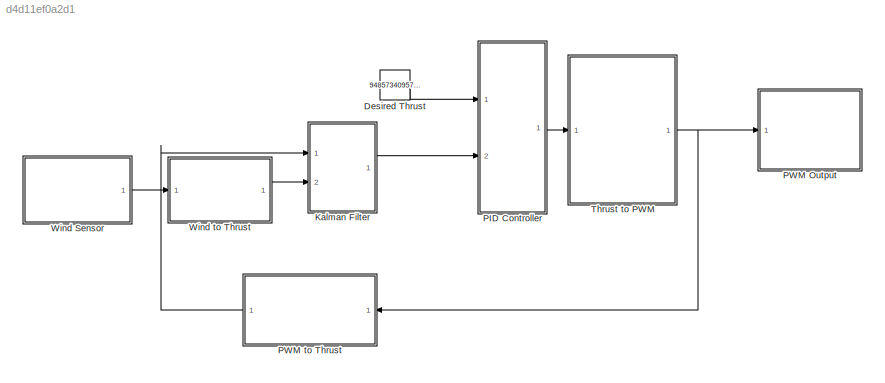
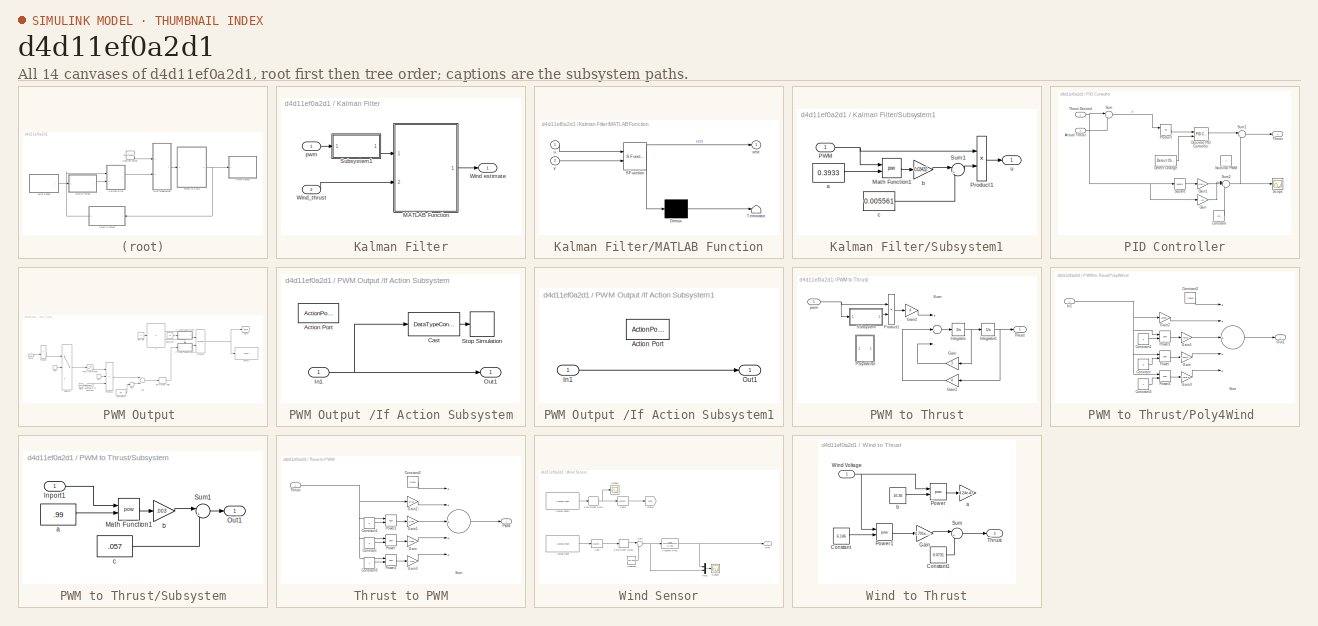
[diagram: thumbnail index - all 14 canvases of the model, root first then tree order]
MODEL slx_d4d11ef0a2d1
KIND model
CONFIG AbsTol = auto
CONFIG EnableMultiTasking = off
CONFIG FixedStep = auto
CONFIG MaxStep = auto
CONFIG MinStep = auto
CONFIG RelTol = 1e-3
CONFIG SampleTimeConstraint = Unconstrained
CONFIG Solver = VariableStepAuto
CONFIG SolverName = VariableStepAuto
CONFIG StartTime = 0.0
CONFIG StopTime = 10.0
BLOCK [Constant] Desired Thrust 
  Value = 9485734095704
BLOCK [SubSystem] Kalman Filter
  Ports = [2, 1]
  RequestExecContextInheritance = off
BLOCK [SubSystem] Kalman Filter/MATLAB Function
  ErrorFcn = Stateflow.Translate.translate
  PermitHierarchicalResolution = ExplicitOnly
  Ports = [2, 1]
  RequestExecContextInheritance = off
  SFBlockType = MATLAB Function
  TreatAsAtomicUnit = on
BLOCK [Demux] Kalman Filter/MATLAB Function/ Demux 
  Outputs = 1
  Ports = [1, 1]
BLOCK [S-Function] Kalman Filter/MATLAB Function/ SFunction 
  EnableBusSupport = on
  FunctionName = sf_sfun
  PortCounts = [2 2]
  Ports = [2, 2]
  SFcnIsStateOwnerBlock = off
  SFunctionDeploymentMode = off
  Tag = Stateflow S-Function Block_diagram 2
BLOCK [Terminator] Kalman Filter/MATLAB Function/ Terminator 
BLOCK [Inport] Kalman Filter/MATLAB Function/u
  IconDisplay = Port number
BLOCK [Outport] Kalman Filter/MATLAB Function/xest
  IconDisplay = Port number
BLOCK [Inport] Kalman Filter/MATLAB Function/y
  IconDisplay = Port number
  Port = 2
BLOCK [SubSystem] Kalman Filter/Subsystem1
  Ports = [1, 1]
  RequestExecContextInheritance = off
BLOCK [Math] Kalman Filter/Subsystem1/Math Function1
  Operator = pow
  Ports = [2, 1]
BLOCK [Inport] Kalman Filter/Subsystem1/PWM
  IconDisplay = Port number
BLOCK [Product] Kalman Filter/Subsystem1/Product1
  InputSameDT = off
  OutDataTypeStr = Inherit: Inherit via internal rule
  Ports = [2, 1]
  RndMeth = Floor
  SaturateOnIntegerOverflow = off
BLOCK [Sum] Kalman Filter/Subsystem1/Sum1
  IconShape = round
  InputSameDT = off
  Inputs = |++
  OutDataTypeStr = Inherit: Inherit via internal rule
  Ports = [2, 1]
  SaturateOnIntegerOverflow = off
BLOCK [Constant] Kalman Filter/Subsystem1/a
  Value = 0.3933
BLOCK [Gain] Kalman Filter/Subsystem1/b
  Gain = 0.03432
  OutDataTypeStr = Inherit: Inherit via internal rule
  ParamDataTypeStr = Inherit: Inherit via internal rule
  SaturateOnIntegerOverflow = off
BLOCK [Constant] Kalman Filter/Subsystem1/c
  Value = 0.005561
BLOCK [Outport] Kalman Filter/Subsystem1/u
  IconDisplay = Port number
BLOCK [Outport] Kalman Filter/Wind estimate
  IconDisplay = Port number
BLOCK [Inport] Kalman Filter/Wind_thrust
  IconDisplay = Port number
  Port = 2
BLOCK [Inport] Kalman Filter/pwm
  IconDisplay = Port number
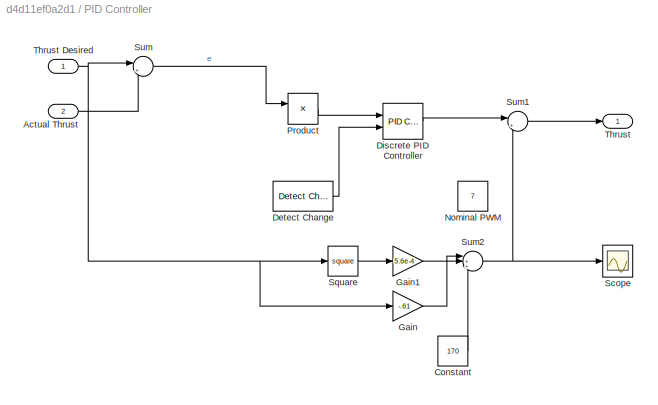
BLOCK [SubSystem] PID Controller
  Ports = [2, 1]
  RequestExecContextInheritance = off
BLOCK [Inport] PID Controller/Actual Thrust
  IconDisplay = Port number
  Port = 2
BLOCK [Constant] PID Controller/Constant
  Value = 170
BLOCK [Reference] PID Controller/Detect Change  REF=simulink/Logic and Bit
Operations/Detect
Change
  Ports = [1, 1]
  SourceBlock = simulink/Logic and Bit\nOperations/Detect\nChange
  SourceProductBaseCode = SL
  SourceProductName = Simulink
  SourceType = Detect Change
BLOCK [Reference] PID Controller/Discrete PID Controller  REF=simulink/Continuous/PID Controller
  Ports = [2, 1]
  SourceBlock = simulink/Continuous/PID Controller
  SourceProductBaseCode = SL
  SourceProductName = Simulink
  SourceType = PID 1dof
BLOCK [Gain] PID Controller/Gain
  Gain = -.61
  OutDataTypeStr = Inherit: Inherit via internal rule
  ParamDataTypeStr = Inherit: Inherit via internal rule
  SaturateOnIntegerOverflow = off
BLOCK [Gain] PID Controller/Gain1
  Gain = 5.6e-4
  OutDataTypeStr = Inherit: Inherit via internal rule
  ParamDataTypeStr = Inherit: Inherit via internal rule
  SaturateOnIntegerOverflow = off
BLOCK [Constant] PID Controller/Nominal PWM
  Commented = on
  SampleTime = 0.01
  Value = 7
BLOCK [Product] PID Controller/Product
  InputSameDT = off
  OutDataTypeStr = Inherit: Inherit via internal rule
  Ports = [2, 1]
  RndMeth = Floor
  SaturateOnIntegerOverflow = off
BLOCK [Scope] PID Controller/Scope
  Floating = off
  NumInputPorts = 1
  Ports = [1]
  ScopeSpecificationString = Simulink.scopes.TimeScopeBlockCfg('CurrentConfiguration', extmgr.ConfigurationSet(extmgr.Configuration('Core','General UI',true),extmgr.Configuration('Core','Source UI',true),extmgr.Configuration('Sources','WiredSimulink',true,'DataLoggingVariableName','ScopeData1'),extmgr.Configuration('Visuals','Time Domain',true,'SerializedDisplays',{struct('MinYLimReal','10.06778','MaxYLimReal','10.39002','YLa...<+1398ch>
BLOCK [Math] PID Controller/Square
  Operator = square
  Ports = [1, 1]
BLOCK [Sum] PID Controller/Sum
  IconShape = round
  InputSameDT = off
  Inputs = |+-
  OutDataTypeStr = Inherit: Inherit via internal rule
  Ports = [2, 1]
  SaturateOnIntegerOverflow = off
BLOCK [Sum] PID Controller/Sum1
  IconShape = round
  InputSameDT = off
  Inputs = |++
  OutDataTypeStr = Inherit: Inherit via internal rule
  Ports = [2, 1]
  SaturateOnIntegerOverflow = off
BLOCK [Sum] PID Controller/Sum2
  IconShape = round
  InputSameDT = off
  Inputs = |+++
  OutDataTypeStr = Inherit: Inherit via internal rule
  Ports = [3, 1]
  SaturateOnIntegerOverflow = off
BLOCK [Outport] PID Controller/Thrust 
  IconDisplay = Port number
BLOCK [Inport] PID Controller/Thrust Desired
  IconDisplay = Port number
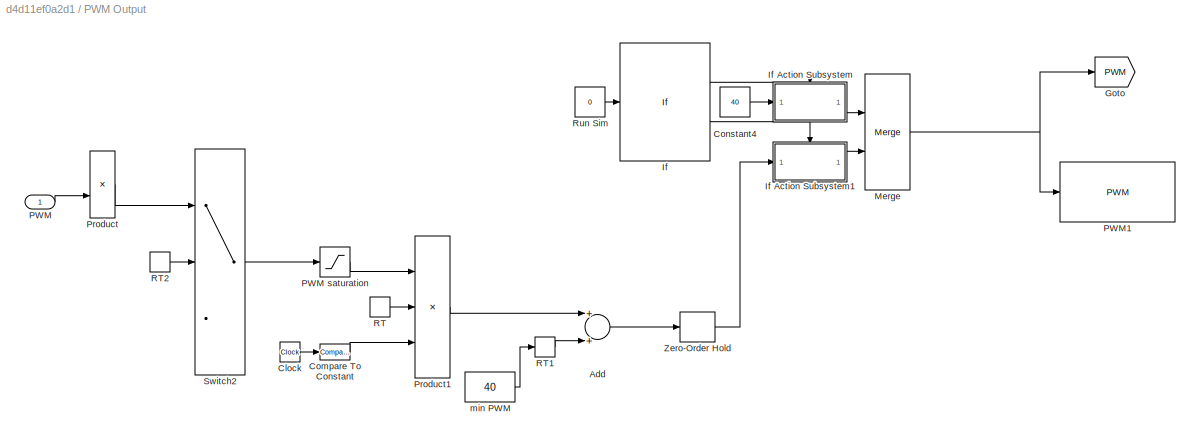
BLOCK [SubSystem] PWM Output 
  Ports = [1]
  RequestExecContextInheritance = off
BLOCK [Sum] PWM Output /Add
  InputSameDT = off
  OutDataTypeStr = Inherit: Inherit via internal rule
  Ports = [2, 1]
  SaturateOnIntegerOverflow = off
BLOCK [Clock] PWM Output /Clock
  Decimation = 2
BLOCK [Reference] PWM Output /Compare To Constant  REF=simulink/Logic and Bit
Operations/Compare
To Constant
  Ports = [1, 1]
  SourceBlock = simulink/Logic and Bit\nOperations/Compare\nTo Constant
  SourceProductBaseCode = SL
  SourceProductName = Simulink
  SourceType = Compare To Constant
BLOCK [Constant] PWM Output /Constant4
  SampleTime = 0.01
  Value = 40
BLOCK [Goto] PWM Output /Goto
  GotoTag = PWM
  TagVisibility = global
BLOCK [If] PWM Output /If
  IfExpression = u1 ~= 1
  Ports = [1, 2]
BLOCK [SubSystem] PWM Output /If Action Subsystem
  Ports = [1, 1, 0, 0, 0, 0, 0, 1]
  RequestExecContextInheritance = off
  TreatAsAtomicUnit = on
BLOCK [ActionPort] PWM Output /If Action Subsystem/Action Port
BLOCK [DataTypeConversion] PWM Output /If Action Subsystem/Cast
  OutDataTypeStr = boolean
  RndMeth = Floor
  SaturateOnIntegerOverflow = off
BLOCK [Inport] PWM Output /If Action Subsystem/In1
  IconDisplay = Port number
BLOCK [Outport] PWM Output /If Action Subsystem/Out1
  IconDisplay = Port number
BLOCK [Stop] PWM Output /If Action Subsystem/Stop Simulation
BLOCK [SubSystem] PWM Output /If Action Subsystem1
  Ports = [1, 1, 0, 0, 0, 0, 0, 1]
  RequestExecContextInheritance = off
  TreatAsAtomicUnit = on
BLOCK [ActionPort] PWM Output /If Action Subsystem1/Action Port
BLOCK [Inport] PWM Output /If Action Subsystem1/In1
  IconDisplay = Port number
BLOCK [Outport] PWM Output /If Action Subsystem1/Out1
  IconDisplay = Port number
BLOCK [Merge] PWM Output /Merge
  Ports = [2, 1]
BLOCK [Inport] PWM Output /PWM
  IconDisplay = Port number
BLOCK [Saturate] PWM Output /PWM saturation
  InputPortMap = u0
  LowerLimit = 0
  Ports = [1, 1]
  UpperLimit = 40
BLOCK [Reference] PWM Output /PWM1  REF=arduinolib/PWM
  Ports = [1]
  SourceBlock = arduinolib/PWM
  SourceProductBaseCode = ARDUINO
  SourceProductName = Simulink Support Package for Arduino Hardware
  SourceType = Arduino PWM
BLOCK [Product] PWM Output /Product
  InputSameDT = off
  OutDataTypeStr = Inherit: Inherit via internal rule
  Ports = [2, 1]
  RndMeth = Floor
  SaturateOnIntegerOverflow = off
BLOCK [Product] PWM Output /Product1
  InputSameDT = off
  Inputs = 3
  OutDataTypeStr = Inherit: Inherit via internal rule
  Ports = [3, 1]
  RndMeth = Floor
  SaturateOnIntegerOverflow = off
BLOCK [RateTransition] PWM Output /RT
  OutPortSampleTime = 0.01
BLOCK [RateTransition] PWM Output /RT1
  OutPortSampleTime = 0.01
BLOCK [RateTransition] PWM Output /RT2
  OutPortSampleTime = 0.01
BLOCK [Constant] PWM Output /Run Sim
  SampleTime = 0.01
  Value = 0
BLOCK [Switch] PWM Output /Switch2
  Criteria = u2 > Threshold
  InputSameDT = off
  SaturateOnIntegerOverflow = off
BLOCK [ZeroOrderHold] PWM Output /Zero-Order Hold
  SampleTime = 0.01
BLOCK [Constant] PWM Output /min PWM
  SampleTime = 0.01
  Value = 40
BLOCK [SubSystem] PWM to Thrust
  Ports = [1, 1]
  RequestExecContextInheritance = off
BLOCK [Gain] PWM to Thrust/Gain
  Gain = 3
  OutDataTypeStr = Inherit: Inherit via internal rule
  ParamDataTypeStr = Inherit: Inherit via internal rule
  SaturateOnIntegerOverflow = off
BLOCK [Gain] PWM to Thrust/Gain1
  Gain = 4
  OutDataTypeStr = Inherit: Inherit via internal rule
  ParamDataTypeStr = Inherit: Inherit via internal rule
  SaturateOnIntegerOverflow = off
BLOCK [Gain] PWM to Thrust/Gain2
  Gain = 4
  OutDataTypeStr = Inherit: Inherit via internal rule
  ParamDataTypeStr = Inherit: Inherit via internal rule
  SaturateOnIntegerOverflow = off
BLOCK [Integrator] PWM to Thrust/Integrator
  Ports = [1, 1]
BLOCK [Integrator] PWM to Thrust/Integrator1
  Ports = [1, 1]
BLOCK [SubSystem] PWM to Thrust/Poly4Wind 
  Ports = [1, 1]
  RequestExecContextInheritance = off
BLOCK [Constant] PWM to Thrust/Poly4Wind /Constant
  Value = 3
BLOCK [Constant] PWM to Thrust/Poly4Wind /Constant1
  Value = 2
BLOCK [Constant] PWM to Thrust/Poly4Wind /Constant2
  Value = -.01842
BLOCK [Constant] PWM to Thrust/Poly4Wind /Constant3
  Value = 4
BLOCK [Gain] PWM to Thrust/Poly4Wind /Gain
  Gain = -.0007476
  OutDataTypeStr = Inherit: Inherit via internal rule
  ParamDataTypeStr = Inherit: Inherit via internal rule
  SaturateOnIntegerOverflow = off
BLOCK [Gain] PWM to Thrust/Poly4Wind /Gain1
  Gain = .01272
  OutDataTypeStr = Inherit: Inherit via internal rule
  ParamDataTypeStr = Inherit: Inherit via internal rule
  SaturateOnIntegerOverflow = off
BLOCK [Gain] PWM to Thrust/Poly4Wind /Gain2
  Gain = .01092
  OutDataTypeStr = Inherit: Inherit via internal rule
  ParamDataTypeStr = Inherit: Inherit via internal rule
  SaturateOnIntegerOverflow = off
BLOCK [Gain] PWM to Thrust/Poly4Wind /Gain3
  Gain = 1.957e-5
  OutDataTypeStr = Inherit: Inherit via internal rule
  ParamDataTypeStr = Inherit: Inherit via internal rule
  SaturateOnIntegerOverflow = off
BLOCK [Inport] PWM to Thrust/Poly4Wind /In1
  IconDisplay = Port number
BLOCK [Outport] PWM to Thrust/Poly4Wind /Out1
  IconDisplay = Port number
BLOCK [Math] PWM to Thrust/Poly4Wind /Power
  Operator = pow
  Ports = [2, 1]
BLOCK [Math] PWM to Thrust/Poly4Wind /Power1
  Operator = pow
  Ports = [2, 1]
BLOCK [Math] PWM to Thrust/Poly4Wind /Power2
  Operator = pow
  Ports = [2, 1]
BLOCK [Sum] PWM to Thrust/Poly4Wind /Sum
  InputSameDT = off
  Inputs = +++++
  OutDataTypeStr = Inherit: Inherit via internal rule
  Ports = [5, 1]
  SaturateOnIntegerOverflow = off
BLOCK [Product] PWM to Thrust/Product1
  InputSameDT = off
  OutDataTypeStr = Inherit: Inherit via internal rule
  Ports = [2, 1]
  RndMeth = Floor
  SaturateOnIntegerOverflow = off
BLOCK [SubSystem] PWM to Thrust/Subsystem
  Ports = [1, 1]
  RequestExecContextInheritance = off
BLOCK [Inport] PWM to Thrust/Subsystem/Inport1
  IconDisplay = Port number
BLOCK [Math] PWM to Thrust/Subsystem/Math Function1
  Operator = pow
  Ports = [2, 1]
BLOCK [Outport] PWM to Thrust/Subsystem/Out1
  IconDisplay = Port number
BLOCK [Sum] PWM to Thrust/Subsystem/Sum1
  IconShape = round
  InputSameDT = off
  Inputs = |++
  OutDataTypeStr = Inherit: Inherit via internal rule
  Ports = [2, 1]
  SaturateOnIntegerOverflow = off
BLOCK [Constant] PWM to Thrust/Subsystem/a
  Value = .99
BLOCK [Gain] PWM to Thrust/Subsystem/b
  Gain = .003
  OutDataTypeStr = Inherit: Inherit via internal rule
  ParamDataTypeStr = Inherit: Inherit via internal rule
  SaturateOnIntegerOverflow = off
BLOCK [Constant] PWM to Thrust/Subsystem/c
  Value = .057
BLOCK [Sum] PWM to Thrust/Sum
  InputSameDT = off
  Inputs = +--
  OutDataTypeStr = Inherit: Inherit via internal rule
  Ports = [3, 1]
  SaturateOnIntegerOverflow = off
BLOCK [Outport] PWM to Thrust/Thrust
  IconDisplay = Port number
BLOCK [Inport] PWM to Thrust/pwm
  IconDisplay = Port number
BLOCK [SubSystem] Thrust to PWM
  Ports = [1, 1]
  RequestExecContextInheritance = off
BLOCK [Constant] Thrust to PWM/Constant
  Value = 3
BLOCK [Constant] Thrust to PWM/Constant1
  Value = 2
BLOCK [Constant] Thrust to PWM/Constant2
  Value = 1.8430
BLOCK [Constant] Thrust to PWM/Constant3
  Value = 4
BLOCK [Gain] Thrust to PWM/Gain
  Gain = 1.008
  OutDataTypeStr = Inherit: Inherit via internal rule
  ParamDataTypeStr = Inherit: Inherit via internal rule
  SaturateOnIntegerOverflow = off
BLOCK [Gain] Thrust to PWM/Gain1
  Gain = -3.409
  OutDataTypeStr = Inherit: Inherit via internal rule
  ParamDataTypeStr = Inherit: Inherit via internal rule
  SaturateOnIntegerOverflow = off
BLOCK [Gain] Thrust to PWM/Gain2
  Gain = 12.29
  OutDataTypeStr = Inherit: Inherit via internal rule
  ParamDataTypeStr = Inherit: Inherit via internal rule
  SaturateOnIntegerOverflow = off
BLOCK [Gain] Thrust to PWM/Gain3
  Gain = -.1746
  OutDataTypeStr = Inherit: Inherit via internal rule
  ParamDataTypeStr = Inherit: Inherit via internal rule
  SaturateOnIntegerOverflow = off
BLOCK [Outport] Thrust to PWM/PWM
  IconDisplay = Port number
BLOCK [Math] Thrust to PWM/Power
  Operator = pow
  Ports = [2, 1]
BLOCK [Math] Thrust to PWM/Power1
  Operator = pow
  Ports = [2, 1]
BLOCK [Math] Thrust to PWM/Power2
  Operator = pow
  Ports = [2, 1]
BLOCK [Sum] Thrust to PWM/Sum
  InputSameDT = off
  Inputs = +++++
  OutDataTypeStr = Inherit: Inherit via internal rule
  Ports = [5, 1]
  SaturateOnIntegerOverflow = off
BLOCK [Inport] Thrust to PWM/Thrust
  IconDisplay = Port number
BLOCK [SubSystem] Wind Sensor
  Ports = [0, 1]
  RequestExecContextInheritance = off
BLOCK [Reference] Wind Sensor/Analog Input  REF=arduinolib/Analog Input
  Ports = [0, 1]
  SourceBlock = arduinolib/Analog Input
  SourceProductBaseCode = ARDUINO
  SourceProductName = Simulink Support Package for Arduino Hardware
  SourceType = Arduino Analog Input
BLOCK [Reference] Wind Sensor/Analog Input1  REF=arduinolib/Analog Input
  Commented = on
  Ports = [0, 1]
  SourceBlock = arduinolib/Analog Input
  SourceProductBaseCode = ARDUINO
  SourceProductName = Simulink Support Package for Arduino Hardware
  SourceType = Arduino Analog Input
BLOCK [DataTypeConversion] Wind Sensor/Cast
  OutDataTypeStr = double
  RndMeth = Floor
  SaturateOnIntegerOverflow = off
BLOCK [DataTypeConversion] Wind Sensor/Cast1
  Commented = on
  OutDataTypeStr = double
  RndMeth = Floor
  SaturateOnIntegerOverflow = off
BLOCK [Constant] Wind Sensor/Constant
  Value = 485.3342
BLOCK [Goto] Wind Sensor/Goto1
  Commented = on
  GotoTag = sync
  TagVisibility = global
BLOCK [Mux] Wind Sensor/Mux1
  DisplayOption = bar
  Inputs = 2
  Ports = [2, 1]
BLOCK [Scope] Wind Sensor/Scope1
  Floating = off
  NumInputPorts = 1
  Ports = [1]
  ScopeSpecificationString = Simulink.scopes.TimeScopeBlockCfg('CurrentConfiguration', extmgr.ConfigurationSet(extmgr.Configuration('Core','General UI',true),extmgr.Configuration('Core','Source UI',true),extmgr.Configuration('Sources','WiredSimulink',true,'DataLoggingVariableName','ScopeData1'),extmgr.Configuration('Visuals','Time Domain',true,'SerializedDisplays',{struct('MinYLimReal','590.625','MaxYLimReal','774.375','YLabe...<+1444ch>
BLOCK [Scope] Wind Sensor/Scope4
  Commented = on
  Floating = off
  NumInputPorts = 1
  Ports = [1]
  ScopeSpecificationString = Simulink.scopes.TimeScopeBlockCfg('CurrentConfiguration', extmgr.ConfigurationSet(extmgr.Configuration('Core','General UI',true),extmgr.Configuration('Core','Source UI',true),extmgr.Configuration('Sources','WiredSimulink',true,'DataLoggingVariableName','ScopeData4','DataLogging',true),extmgr.Configuration('Visuals','Time Domain',true,'SerializedDisplays',{struct('MinYLimReal','480.00000','MaxYLimR...<+1526ch>
BLOCK [Sum] Wind Sensor/Sum
  IconShape = round
  InputSameDT = off
  Inputs = |+-
  OutDataTypeStr = Inherit: Inherit via internal rule
  Ports = [2, 1]
  SaturateOnIntegerOverflow = off
BLOCK [TransferFcn] Wind Sensor/Transfer Fcn1
  Denominator = [1 30]
  Numerator = [30]
BLOCK [Outport] Wind Sensor/Wind
  IconDisplay = Port number
BLOCK [ZeroOrderHold] Wind Sensor/Zero-Order Hold
  Commented = on
  SampleTime = 0.01
BLOCK [ZeroOrderHold] Wind Sensor/Zero-Order Hold1
  SampleTime = 0.01
BLOCK [SubSystem] Wind to Thrust
  Ports = [1, 1]
  RequestExecContextInheritance = off
BLOCK [Constant] Wind to Thrust/Constant
  Value = 6.146
BLOCK [Constant] Wind to Thrust/Constant1
  Value = 0.0731
BLOCK [Gain] Wind to Thrust/Gain
  Gain = 4.701e-15
  OutDataTypeStr = Inherit: Inherit via internal rule
  ParamDataTypeStr = Inherit: Inherit via internal rule
  SaturateOnIntegerOverflow = off
BLOCK [Math] Wind to Thrust/Power
  Operator = pow
  Ports = [2, 1]
BLOCK [Math] Wind to Thrust/Power1
  Operator = pow
  Ports = [2, 1]
BLOCK [Sum] Wind to Thrust/Sum
  IconShape = round
  InputSameDT = off
  Inputs = |++
  OutDataTypeStr = Inherit: Inherit via internal rule
  Ports = [2, 1]
  SaturateOnIntegerOverflow = off
BLOCK [Outport] Wind to Thrust/Thrust
  IconDisplay = Port number
BLOCK [Inport] Wind to Thrust/Wind Voltage
  IconDisplay = Port number
BLOCK [Gain] Wind to Thrust/a
  Gain = 4.24e-47
  OutDataTypeStr = Inherit: Inherit via internal rule
  ParamDataTypeStr = Inherit: Inherit via internal rule
  SaturateOnIntegerOverflow = off
BLOCK [Constant] Wind to Thrust/b
  Value = 16.36
LINE Desired Thrust :1 -> PID Controller:1
LINE Kalman Filter/MATLAB Function:1 -> Kalman Filter/Wind estimate:1
LINE Kalman Filter/Subsystem1/Math Function1:1 -> Kalman Filter/Subsystem1/b:1
NET Kalman Filter/Subsystem1/PWM:1 -> Kalman Filter/Subsystem1/Math Function1:1, Kalman Filter/Subsystem1/Product1:1
LINE Kalman Filter/Subsystem1/Product1:1 -> Kalman Filter/Subsystem1/u:1
LINE Kalman Filter/Subsystem1/Sum1:1 -> Kalman Filter/Subsystem1/Product1:2
LINE Kalman Filter/Subsystem1/a:1 -> Kalman Filter/Subsystem1/Math Function1:2
LINE Kalman Filter/Subsystem1/b:1 -> Kalman Filter/Subsystem1/Sum1:1
LINE Kalman Filter/Subsystem1/c:1 -> Kalman Filter/Subsystem1/Sum1:2
LINE Kalman Filter/Subsystem1:1 -> Kalman Filter/MATLAB Function:1
LINE Kalman Filter/Wind_thrust:1 -> Kalman Filter/MATLAB Function:2
LINE Kalman Filter/pwm:1 -> Kalman Filter/Subsystem1:1
LINE Kalman Filter:1 -> PID Controller:2
LINE PID Controller/Actual Thrust:1 -> PID Controller/Sum:2
LINE PID Controller/Constant:1 -> PID Controller/Sum2:3
LINE PID Controller/Detect Change:1 -> PID Controller/Discrete PID Controller:2
LINE PID Controller/Discrete PID Controller:1 -> PID Controller/Sum1:1
LINE PID Controller/Gain1:1 -> PID Controller/Sum2:1
LINE PID Controller/Gain:1 -> PID Controller/Sum2:2
LINE PID Controller/Product:1 -> PID Controller/Discrete PID Controller:1
LINE PID Controller/Square:1 -> PID Controller/Gain1:1
LINE PID Controller/Sum1:1 -> PID Controller/Thrust :1
NET PID Controller/Sum2:1 -> PID Controller/Scope:1, PID Controller/Sum1:2
LINE PID Controller/Sum:1 -> PID Controller/Product:1
NET PID Controller/Thrust Desired:1 -> PID Controller/Gain:1, PID Controller/Square:1, PID Controller/Sum:1
LINE PID Controller:1 -> Thrust to PWM:1
LINE PWM Output /Add:1 -> PWM Output /Zero-Order Hold:1
LINE PWM Output /Clock:1 -> PWM Output /Compare To Constant:1
LINE PWM Output /Compare To Constant:1 -> PWM Output /Product1:3
LINE PWM Output /Constant4:1 -> PWM Output /If Action Subsystem:1
LINE PWM Output /If Action Subsystem/Cast:1 -> PWM Output /If Action Subsystem/Stop Simulation:1
NET PWM Output /If Action Subsystem/In1:1 -> PWM Output /If Action Subsystem/Cast:1, PWM Output /If Action Subsystem/Out1:1
LINE PWM Output /If Action Subsystem1/In1:1 -> PWM Output /If Action Subsystem1/Out1:1
LINE PWM Output /If Action Subsystem1:1 -> PWM Output /Merge:2
LINE PWM Output /If Action Subsystem:1 -> PWM Output /Merge:1
LINE PWM Output /If:1 -> PWM Output /If Action Subsystem:ifaction
LINE PWM Output /If:2 -> PWM Output /If Action Subsystem1:ifaction
NET PWM Output /Merge:1 -> PWM Output /Goto:1, PWM Output /PWM1:1
LINE PWM Output /PWM saturation:1 -> PWM Output /Product1:1
LINE PWM Output /PWM:1 -> PWM Output /Product:2
LINE PWM Output /Product1:1 -> PWM Output /Add:1
LINE PWM Output /Product:1 -> PWM Output /Switch2:1
LINE PWM Output /RT1:1 -> PWM Output /Add:2
LINE PWM Output /RT2:1 -> PWM Output /Switch2:2
LINE PWM Output /RT:1 -> PWM Output /Product1:2
LINE PWM Output /Run Sim:1 -> PWM Output /If:1
LINE PWM Output /Switch2:1 -> PWM Output /PWM saturation:1
LINE PWM Output /Zero-Order Hold:1 -> PWM Output /If Action Subsystem1:1
LINE PWM Output /min PWM:1 -> PWM Output /RT1:1
LINE PWM to Thrust/Gain1:1 -> PWM to Thrust/Sum:2
LINE PWM to Thrust/Gain2:1 -> PWM to Thrust/Sum:1
LINE PWM to Thrust/Gain:1 -> PWM to Thrust/Sum:3
NET PWM to Thrust/Integrator1:1 -> PWM to Thrust/Gain1:1, PWM to Thrust/Thrust:1
NET PWM to Thrust/Integrator:1 -> PWM to Thrust/Gain:1, PWM to Thrust/Integrator1:1
LINE PWM to Thrust/Poly4Wind /Constant1:1 -> PWM to Thrust/Poly4Wind /Power1:2
LINE PWM to Thrust/Poly4Wind /Constant2:1 -> PWM to Thrust/Poly4Wind /Sum:1
LINE PWM to Thrust/Poly4Wind /Constant3:1 -> PWM to Thrust/Poly4Wind /Power2:2
LINE PWM to Thrust/Poly4Wind /Constant:1 -> PWM to Thrust/Poly4Wind /Power:2
LINE PWM to Thrust/Poly4Wind /Gain1:1 -> PWM to Thrust/Poly4Wind /Sum:3
LINE PWM to Thrust/Poly4Wind /Gain2:1 -> PWM to Thrust/Poly4Wind /Sum:2
LINE PWM to Thrust/Poly4Wind /Gain3:1 -> PWM to Thrust/Poly4Wind /Sum:5
LINE PWM to Thrust/Poly4Wind /Gain:1 -> PWM to Thrust/Poly4Wind /Sum:4
NET PWM to Thrust/Poly4Wind /In1:1 -> PWM to Thrust/Poly4Wind /Gain2:1, PWM to Thrust/Poly4Wind /Power1:1, PWM to Thrust/Poly4Wind /Power2:1, PWM to Thrust/Poly4Wind /Power:1
LINE PWM to Thrust/Poly4Wind /Power1:1 -> PWM to Thrust/Poly4Wind /Gain1:1
LINE PWM to Thrust/Poly4Wind /Power2:1 -> PWM to Thrust/Poly4Wind /Gain3:1
LINE PWM to Thrust/Poly4Wind /Power:1 -> PWM to Thrust/Poly4Wind /Gain:1
LINE PWM to Thrust/Poly4Wind /Sum:1 -> PWM to Thrust/Poly4Wind /Out1:1
LINE PWM to Thrust/Product1:1 -> PWM to Thrust/Gain2:1
LINE PWM to Thrust/Subsystem/Inport1:1 -> PWM to Thrust/Subsystem/Math Function1:1
LINE PWM to Thrust/Subsystem/Math Function1:1 -> PWM to Thrust/Subsystem/b:1
LINE PWM to Thrust/Subsystem/Sum1:1 -> PWM to Thrust/Subsystem/Out1:1
LINE PWM to Thrust/Subsystem/a:1 -> PWM to Thrust/Subsystem/Math Function1:2
LINE PWM to Thrust/Subsystem/b:1 -> PWM to Thrust/Subsystem/Sum1:1
LINE PWM to Thrust/Subsystem/c:1 -> PWM to Thrust/Subsystem/Sum1:2
LINE PWM to Thrust/Subsystem:1 -> PWM to Thrust/Product1:2
LINE PWM to Thrust/Sum:1 -> PWM to Thrust/Integrator:1
NET PWM to Thrust/pwm:1 -> PWM to Thrust/Product1:1, PWM to Thrust/Subsystem:1
LINE PWM to Thrust:1 -> Kalman Filter:1
LINE Thrust to PWM/Constant1:1 -> Thrust to PWM/Power1:2
LINE Thrust to PWM/Constant2:1 -> Thrust to PWM/Sum:1
LINE Thrust to PWM/Constant3:1 -> Thrust to PWM/Power2:2
LINE Thrust to PWM/Constant:1 -> Thrust to PWM/Power:2
LINE Thrust to PWM/Gain1:1 -> Thrust to PWM/Sum:3
LINE Thrust to PWM/Gain2:1 -> Thrust to PWM/Sum:2
LINE Thrust to PWM/Gain3:1 -> Thrust to PWM/Sum:5
LINE Thrust to PWM/Gain:1 -> Thrust to PWM/Sum:4
LINE Thrust to PWM/Power1:1 -> Thrust to PWM/Gain1:1
LINE Thrust to PWM/Power2:1 -> Thrust to PWM/Gain3:1
LINE Thrust to PWM/Power:1 -> Thrust to PWM/Gain:1
LINE Thrust to PWM/Sum:1 -> Thrust to PWM/PWM:1
NET Thrust to PWM/Thrust:1 -> Thrust to PWM/Gain2:1, Thrust to PWM/Power1:1, Thrust to PWM/Power2:1, Thrust to PWM/Power:1
NET Thrust to PWM:1 -> PWM Output :1, PWM to Thrust:1
LINE Wind Sensor/Analog Input1:1 -> Wind Sensor/Zero-Order Hold:1
LINE Wind Sensor/Analog Input:1 -> Wind Sensor/Cast:1
LINE Wind Sensor/Cast1:1 -> Wind Sensor/Goto1:1
LINE Wind Sensor/Cast:1 -> Wind Sensor/Zero-Order Hold1:1
LINE Wind Sensor/Constant:1 -> Wind Sensor/Sum:2
LINE Wind Sensor/Mux1:1 -> Wind Sensor/Scope1:1
NET Wind Sensor/Sum:1 -> Wind Sensor/Mux1:2, Wind Sensor/Transfer Fcn1:1
NET Wind Sensor/Transfer Fcn1:1 -> Wind Sensor/Mux1:1, Wind Sensor/Wind:1
LINE Wind Sensor/Zero-Order Hold1:1 -> Wind Sensor/Sum:1
NET Wind Sensor/Zero-Order Hold:1 -> Wind Sensor/Cast1:1, Wind Sensor/Scope4:1
LINE Wind Sensor:1 -> Wind to Thrust:1
LINE Wind to Thrust/Constant1:1 -> Wind to Thrust/Sum:2
LINE Wind to Thrust/Constant:1 -> Wind to Thrust/Power1:2
LINE Wind to Thrust/Gain:1 -> Wind to Thrust/Sum:1
LINE Wind to Thrust/Power1:1 -> Wind to Thrust/Gain:1
LINE Wind to Thrust/Power:1 -> Wind to Thrust/a:1
LINE Wind to Thrust/Sum:1 -> Wind to Thrust/Thrust:1
NET Wind to Thrust/Wind Voltage:1 -> Wind to Thrust/Power1:1, Wind to Thrust/Power:1
LINE Wind to Thrust/b:1 -> Wind to Thrust/Power:2
LINE Wind to Thrust:1 -> Kalman Filter:2
note: NET lines group one-source signal fan-out (src -> all destinations, sorted); 1:1 wires keep LINE
CHART Kalman Filter/MATLAB Function states=1 transitions=1
  STATE_LABEL 'eML_blk_kernel()'
  STATE_LABEL "SCRIPT:\nfunction xest  = fcn(u, y)\npersistent P xh\nif isempty(P)\n    P = eye(2);\n    xh = zeros(2,1);\nend\n% A = [0 1; -4 -3];\n% B = [0; 4];\n% C = [1 0];\n\nAd = [0.9998  0.009851; -0.0394    0.9702];\nBd = [0.000198; 0.0394];\nCd = [1 0];\n\nQ = 1;\nR = diag([5,5]);\n\n\n% Model information\nxh_bar = Ad * xh + Bd * u;\nP_bar = Ad * P * Ad' + R;\n\n% Measurement update\nK = P_bar * Cd' * (Cd * P_bar * Cd' + Q)^-1...<+76ch>"
